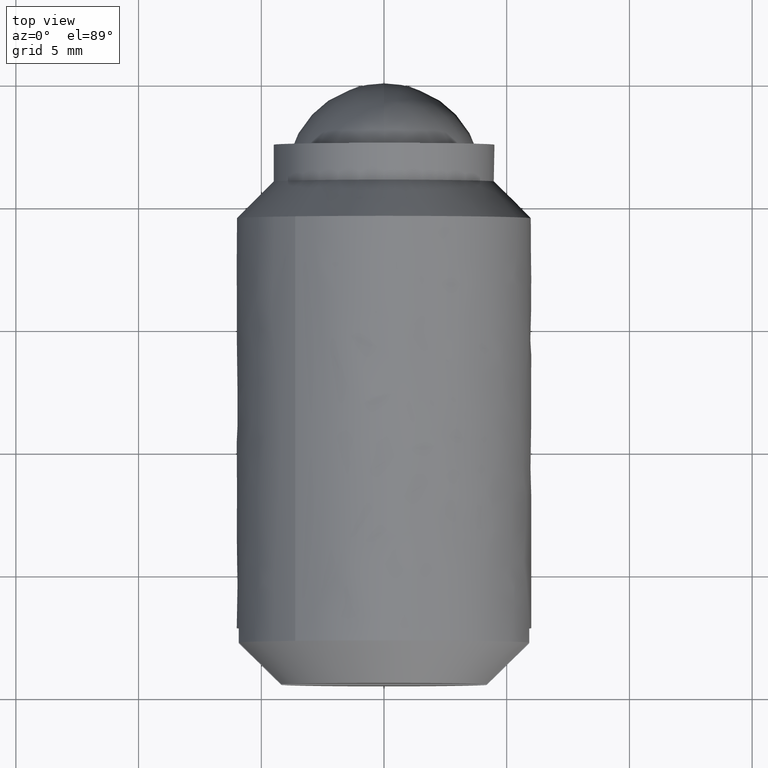
[diagram: clean part render]
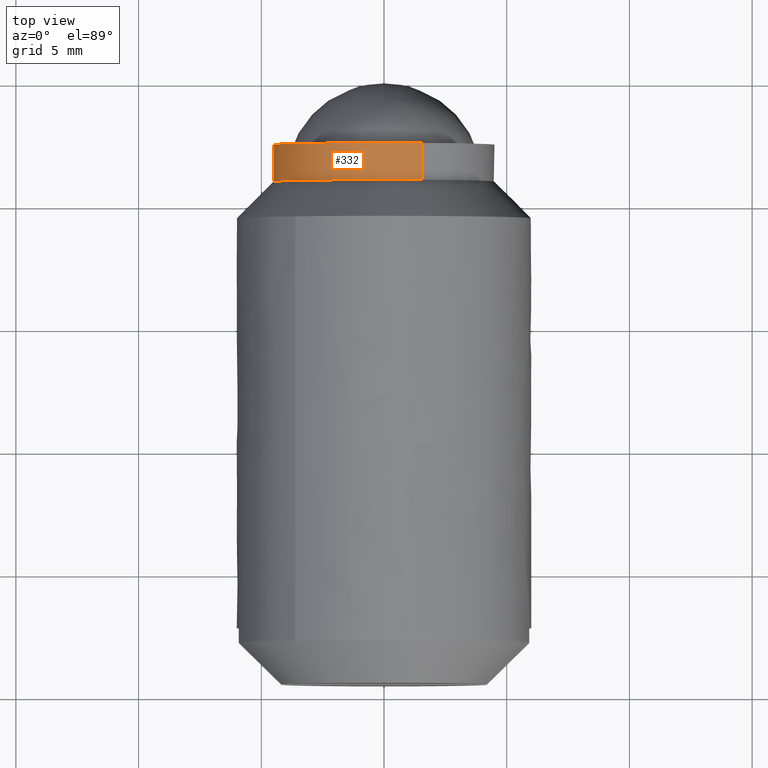
[diagram: same view with one face highlighted and labeled with its STEP entity id]
A machine part, top view. The second image highlights one B-rep face of the part: STEP entity #332.
In plain terms, the highlighted face is a freeform B-spline surface patch.
Its self-contained STEP definition (entity closure, byte-faithful):
#234=CARTESIAN_POINT('',(1.621813460999532,-2.462499999999999,4.197797565559015));
#235=CARTESIAN_POINT('',(1.602024149733922,-2.462499999999999,4.205230482581115));
#236=CARTESIAN_POINT('',(0.949452532719337,-2.462500000000000,4.450338087143176));
#237=CARTESIAN_POINT('',(0.274718427906856,-2.462500000000000,4.491606592898398));
#238=CARTESIAN_POINT('',(-4.216888164991543,-2.462500000000000,4.766325020805255));
#239=CARTESIAN_POINT('',(-4.492770288826411,-2.462500000000000,0.255692167665752));
#240=CARTESIAN_POINT('',(-4.493929908284846,-2.462500000000000,0.236732557113064));
#241=CARTESIAN_POINT('',(1.621813460999532,-4.038437500000001,4.197797565559015));
#242=CARTESIAN_POINT('',(1.602024149733922,-4.038437500000002,4.205230482581115));
#243=CARTESIAN_POINT('',(0.949452532719337,-4.038437500000001,4.450338087143176));
#244=CARTESIAN_POINT('',(0.274718427906856,-4.038437500000001,4.491606592898398));
#245=CARTESIAN_POINT('',(-4.216888164991543,-4.038437500000002,4.766325020805255));
#246=CARTESIAN_POINT('',(-4.492770288826411,-4.038437500000001,0.255692167665752));
#247=CARTESIAN_POINT('',(-4.493929908284846,-4.038437500000001,0.236732557113064));
#255=(BOUNDED_SURFACE()B_SPLINE_SURFACE(2,1,((#234,#241),(#235,#242),(#236,#243),(#237,#244),(#238,#245),(#239,#246),(#240,#247)),.UNSPECIFIED.,.F.,.F.,.U.)B_SPLINE_SURFACE_WITH_KNOTS((3,1,2,1,3),(2,2),(0.0,0.044733188950966,1.535902013494107,8.991746136209814,9.036489251434103),(0.0,1.0),.UNSPECIFIED.)GEOMETRIC_REPRESENTATION_ITEM()RATIONAL_B_SPLINE_SURFACE(((0.904165427229607,0.904165427229607),(0.905219798604651,0.905219798604651),(0.941421356237309,0.941421356237309),(1.0,1.0),(0.707106781186548,0.707106781186548),(1.001757675565917,1.001757675565917),(1.003515351131834,1.003515351131834)))REPRESENTATION_ITEM('')SURFACE());
#256=CARTESIAN_POINT('',(1.582278602989913,-3.999999999999957,4.212646961533132));
#257=VERTEX_POINT('',#256);
#258=CARTESIAN_POINT('',(0.0,-4.0,4.499999999999998));
#259=VERTEX_POINT('',#258);
#260=CARTESIAN_POINT('',(1.582278602989913,-3.999999999999957,4.212646961533133));
#261=CARTESIAN_POINT('',(0.817231978397782,-4.0,4.499999999999997));
#262=CARTESIAN_POINT('',(0.0,-4.0,4.499999999999998));
#270=(BOUNDED_CURVE()B_SPLINE_CURVE(2,(#260,#261,#262),.UNSPECIFIED.,.F.,.U.)B_SPLINE_CURVE_WITH_KNOTS((3,3),(0.440284256452175,0.500000000000000),.UNSPECIFIED.)CURVE()GEOMETRIC_REPRESENTATION_ITEM()RATIONAL_B_SPLINE_CURVE((0.893499659332722,0.930038654633755,1.0))REPRESENTATION_ITEM(''));
#271=EDGE_CURVE('',#257,#259,#270,.T.);
#272=ORIENTED_EDGE('',*,*,#271,.F.);
#273=CARTESIAN_POINT('',(1.582279204831402,-2.500000000000000,4.212646735480542));
#274=VERTEX_POINT('',#273);
#275=CARTESIAN_POINT('',(1.582279204831402,-2.500000000000000,4.212646735480542));
#276=CARTESIAN_POINT('',(1.582278602989913,-3.999999999999957,4.212646961533132));
#277=QUASI_UNIFORM_CURVE('',1,(#275,#276),.UNSPECIFIED.,.F.,.U.);
#278=EDGE_CURVE('',#274,#257,#277,.T.);
#279=ORIENTED_EDGE('',*,*,#278,.F.);
#280=CARTESIAN_POINT('',(0.0,-2.500000000000000,4.499999999999998));
#281=VERTEX_POINT('',#280);
#282=CARTESIAN_POINT('',(1.582279204831402,-2.500000000000000,4.212646735480543));
#283=CARTESIAN_POINT('',(0.817232310446578,-2.500000000000000,4.499999999999998));
#284=CARTESIAN_POINT('',(0.0,-2.500000000000000,4.499999999999998));
#292=(BOUNDED_CURVE()B_SPLINE_CURVE(2,(#282,#283,#284),.UNSPECIFIED.,.F.,.U.)B_SPLINE_CURVE_WITH_KNOTS((3,3),(0.440284233886600,0.500000000000000),.UNSPECIFIED.)CURVE()GEOMETRIC_REPRESENTATION_ITEM()RATIONAL_B_SPLINE_CURVE((0.893499631717785,0.930038628196540,1.0))REPRESENTATION_ITEM(''));
#293=EDGE_CURVE('',#274,#281,#292,.T.);
#294=ORIENTED_EDGE('',*,*,#293,.T.);
#295=CARTESIAN_POINT('',(-4.491607010843072,-2.500000000000000,0.274711594401256));
#296=VERTEX_POINT('',#295);
#297=CARTESIAN_POINT('',(0.0,-2.500000000000000,4.499999999999998));
#298=CARTESIAN_POINT('',(-4.233183753447301,-2.500000000000000,4.499999999999998));
#299=CARTESIAN_POINT('',(-4.491607010843072,-2.500000000000000,0.274711594401256));
#307=(BOUNDED_CURVE()B_SPLINE_CURVE(2,(#297,#298,#299),.UNSPECIFIED.,.F.,.U.)B_SPLINE_CURVE_WITH_KNOTS((3,3),(0.500000000000000,0.739333224753758),.UNSPECIFIED.)CURVE()GEOMETRIC_REPRESENTATION_ITEM()RATIONAL_B_SPLINE_CURVE((1.0,0.719603685731474,0.976072604286583))REPRESENTATION_ITEM(''));
#308=EDGE_CURVE('',#281,#296,#307,.T.);
#309=ORIENTED_EDGE('',*,*,#308,.T.);
#310=CARTESIAN_POINT('',(-4.491606592899792,-4.000000000005571,0.274718427926606));
#311=VERTEX_POINT('',#310);
#312=CARTESIAN_POINT('',(-4.491607010843072,-2.500000000000000,0.274711594401256));
#313=CARTESIAN_POINT('',(-4.491606592899792,-4.000000000005571,0.274718427926606));
#314=QUASI_UNIFORM_CURVE('',1,(#312,#313),.UNSPECIFIED.,.F.,.U.);
#315=EDGE_CURVE('',#296,#311,#314,.T.);
#316=ORIENTED_EDGE('',*,*,#315,.T.);
#317=CARTESIAN_POINT('',(0.0,-4.0,4.499999999999998));
#318=CARTESIAN_POINT('',(-4.233177301001646,-4.000000000000001,4.499999999999999));
#319=CARTESIAN_POINT('',(-4.491606592899792,-4.000000000005571,0.274718427926606));
#327=(BOUNDED_CURVE()B_SPLINE_CURVE(2,(#317,#318,#319),.UNSPECIFIED.,.F.,.U.)B_SPLINE_CURVE_WITH_KNOTS((3,3),(0.500000000000000,0.739332962238958),.UNSPECIFIED.)CURVE()GEOMETRIC_REPRESENTATION_ITEM()RATIONAL_B_SPLINE_CURVE((1.0,0.719603993286692,0.976072041666751))REPRESENTATION_ITEM(''));
#328=EDGE_CURVE('',#259,#311,#327,.T.);
#329=ORIENTED_EDGE('',*,*,#328,.F.);
#330=EDGE_LOOP('',(#272,#279,#294,#309,#316,#329));
#331=FACE_OUTER_BOUND('',#330,.T.);
#332=ADVANCED_FACE('',(#331),#255,.T.);